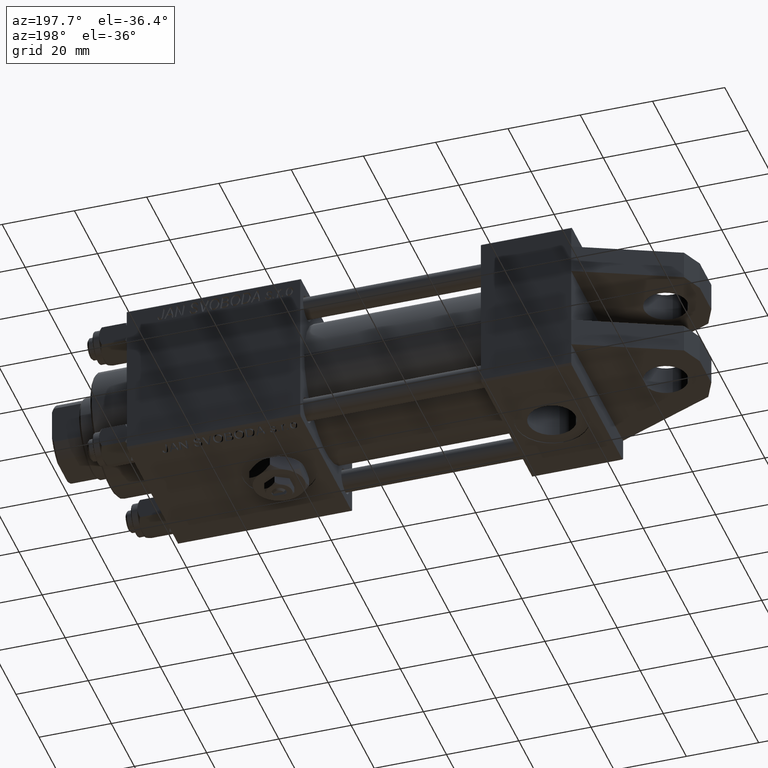
[diagram: clean part render]
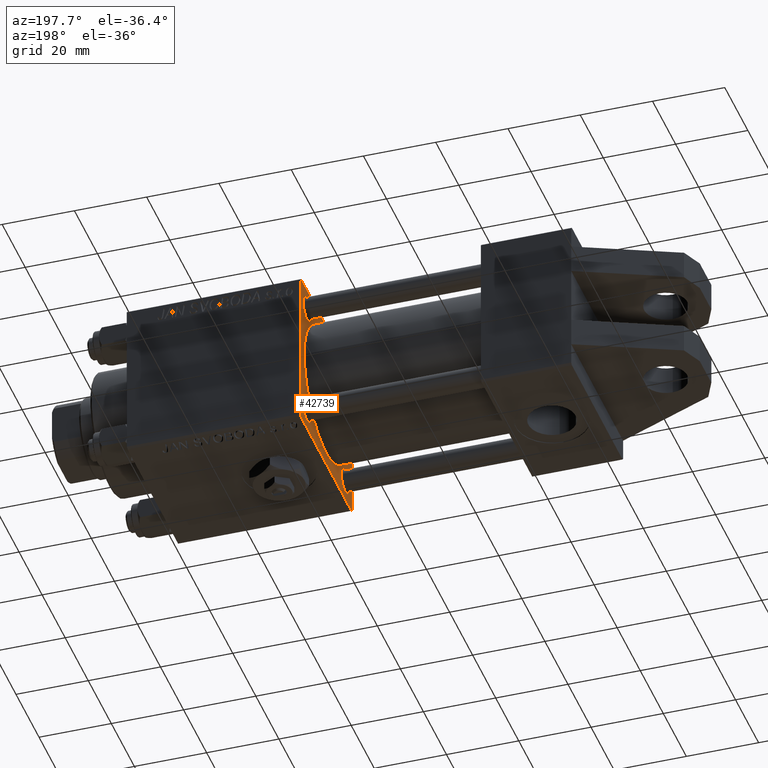
[diagram: same view with one face highlighted and labeled with its STEP entity id]
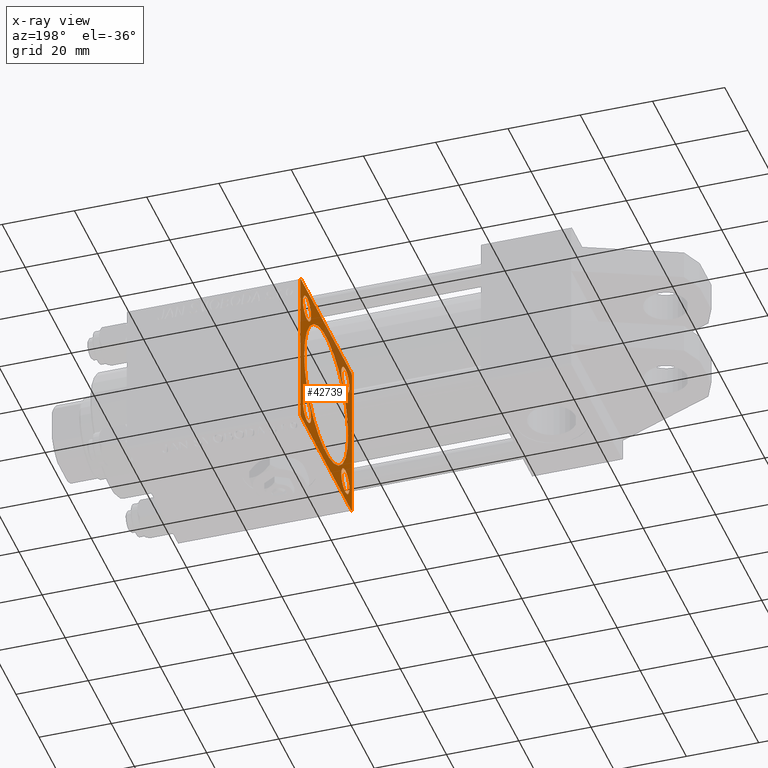
[diagram: x-ray of the same camera — body ghosted, the highlighted face saturated]
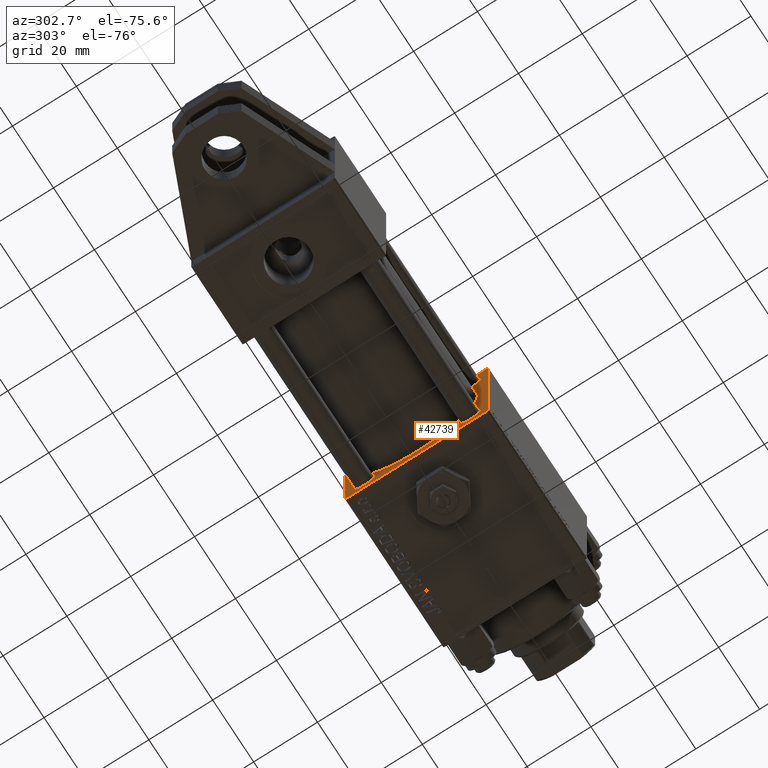
[diagram: same view with one face highlighted and labeled with its STEP entity id]
A machine part, auxiliary view. The second image highlights one B-rep face of the part: STEP entity #42739.
The next image is the same camera in x-ray: the body ghosted, the highlighted face saturated — about 29% of this face is hidden behind the body in this view.
A second angle (auxiliary view) of the same face is appended — the face is thin or edge-on in the first view.
In plain terms, the highlighted planar face has unit normal (-1, 0, -0).
Its self-contained STEP definition (entity closure, byte-faithful):
#305 = VECTOR ( 'NONE', #2714, 999.9999999999998863 ) ;
#902 = VERTEX_POINT ( 'NONE', #11072 ) ;
#1045 = EDGE_CURVE ( 'NONE', #2065, #22697, #37447, .T. ) ;
#1548 = ORIENTED_EDGE ( 'NONE', *, *, #25899, .T. ) ;
#1724 = EDGE_CURVE ( 'NONE', #14523, #5229, #34012, .T. ) ;
#1776 = AXIS2_PLACEMENT_3D ( 'NONE', #49094, #49355, #2058 ) ;
#1913 = CARTESIAN_POINT ( 'NONE',  ( 75.00000000000001421, -16.59999999999999787, 20.10000000000001208 ) ) ;
#2058 = DIRECTION ( 'NONE',  ( 0.000000000000000000, 0.000000000000000000, -1.000000000000000000 ) ) ;
#2065 = VERTEX_POINT ( 'NONE', #51357 ) ;
#2286 = ORIENTED_EDGE ( 'NONE', *, *, #14322, .F. ) ;
#2714 = DIRECTION ( 'NONE',  ( 0.000000000000000000, -0.7071067811865425767, 0.7071067811865525687 ) ) ;
#2893 = CARTESIAN_POINT ( 'NONE',  ( 75.00000000000001421, -21.99999999999998224, -22.50000000000000000 ) ) ;
#3347 = VERTEX_POINT ( 'NONE', #7104 ) ;
#3606 = EDGE_LOOP ( 'NONE', ( #34100, #44210 ) ) ;
#3982 = DIRECTION ( 'NONE',  ( 0.000000000000000000, 0.000000000000000000, 1.000000000000000000 ) ) ;
#4172 = CARTESIAN_POINT ( 'NONE',  ( 75.00000000000001421, 16.59999999999999787, -16.60000000000000497 ) ) ;
#4325 = LINE ( 'NONE', #22094, #42501 ) ;
#4722 = DIRECTION ( 'NONE',  ( 1.000000000000000000, 0.000000000000000000, 0.000000000000000000 ) ) ;
#5229 = VERTEX_POINT ( 'NONE', #32966 ) ;
#5438 = VERTEX_POINT ( 'NONE', #2893 ) ;
#5440 = CARTESIAN_POINT ( 'NONE',  ( 75.00000000000001421, 22.50000000000000355, 22.50000000000000355 ) ) ;
#5922 = CARTESIAN_POINT ( 'NONE',  ( 75.00000000000001421, -16.59999999999999787, 16.59999999999999787 ) ) ;
#6231 = FACE_BOUND ( 'NONE', #7945, .T. ) ;
#6274 = EDGE_LOOP ( 'NONE', ( #22276, #25473 ) ) ;
#6379 = LINE ( 'NONE', #22068, #305 ) ;
#6754 = AXIS2_PLACEMENT_3D ( 'NONE', #18334, #34272, #49933 ) ;
#6915 = ORIENTED_EDGE ( 'NONE', *, *, #1724, .T. ) ;
#7104 = CARTESIAN_POINT ( 'NONE',  ( 75.00000000000001421, -16.60000000000000497, -13.09999999999997300 ) ) ;
#7590 = AXIS2_PLACEMENT_3D ( 'NONE', #4172, #35304, #43632 ) ;
#7704 = CARTESIAN_POINT ( 'NONE',  ( 75.00000000000001421, 22.24999999999968026, 22.25000000000029488 ) ) ;
#7900 = DIRECTION ( 'NONE',  ( 0.000000000000000000, 0.000000000000000000, 1.000000000000000000 ) ) ;
#7945 = EDGE_LOOP ( 'NONE', ( #51056, #49007 ) ) ;
#8349 = ORIENTED_EDGE ( 'NONE', *, *, #38693, .T. ) ;
#8954 = EDGE_CURVE ( 'NONE', #17128, #26321, #44249, .T. ) ;
#9115 = CARTESIAN_POINT ( 'NONE',  ( 75.00000000000001421, 22.50000000000000355, -22.49999999999999645 ) ) ;
#9352 = LINE ( 'NONE', #5440, #37771 ) ;
#9622 = FACE_BOUND ( 'NONE', #6274, .T. ) ;
#9721 = VECTOR ( 'NONE', #21557, 1000.000000000000000 ) ;
#9781 = CARTESIAN_POINT ( 'NONE',  ( 75.00000000000001421, 22.24999999999969802, -22.25000000000031619 ) ) ;
#9895 = EDGE_CURVE ( 'NONE', #20922, #3347, #42628, .T. ) ;
#10833 = EDGE_CURVE ( 'NONE', #26321, #17128, #30141, .T. ) ;
#11019 = CARTESIAN_POINT ( 'NONE',  ( 75.00000000000001421, 22.00000000000000355, -22.49999999999999645 ) ) ;
#11072 = CARTESIAN_POINT ( 'NONE',  ( 75.00000000000001421, 21.99999999999996092, 22.50000000000000355 ) ) ;
#11725 = CIRCLE ( 'NONE', #45092, 3.500000000000016875 ) ;
#11732 = VERTEX_POINT ( 'NONE', #11019 ) ;
#11992 = EDGE_LOOP ( 'NONE', ( #17737, #28368 ) ) ;
#12415 = VECTOR ( 'NONE', #34276, 1000.000000000000000 ) ;
#12578 = CARTESIAN_POINT ( 'NONE',  ( 75.00000000000001421, -3.469446951953614189E-15, 0.000000000000000000 ) ) ;
#13207 = CARTESIAN_POINT ( 'NONE',  ( 75.00000000000001421, -3.469446951953614189E-15, 19.00000000000000000 ) ) ;
#13283 = ORIENTED_EDGE ( 'NONE', *, *, #47169, .T. ) ;
#13784 = DIRECTION ( 'NONE',  ( 0.000000000000000000, 0.000000000000000000, 1.000000000000000000 ) ) ;
#14322 = EDGE_CURVE ( 'NONE', #902, #24273, #9352, .T. ) ;
#14523 = VERTEX_POINT ( 'NONE', #23192 ) ;
#15301 = CIRCLE ( 'NONE', #39493, 19.00000000000000000 ) ;
#16131 = VERTEX_POINT ( 'NONE', #25070 ) ;
#16417 = ORIENTED_EDGE ( 'NONE', *, *, #1045, .T. ) ;
#17128 = VERTEX_POINT ( 'NONE', #22458 ) ;
#17734 = PLANE ( 'NONE',  #47992 ) ;
#17737 = ORIENTED_EDGE ( 'NONE', *, *, #38809, .T. ) ;
#17804 = VECTOR ( 'NONE', #50841, 1000.000000000000000 ) ;
#17997 = DIRECTION ( 'NONE',  ( -0.000000000000000000, 0.000000000000000000, 1.000000000000000000 ) ) ;
#18009 = EDGE_CURVE ( 'NONE', #23821, #29713, #33738, .T. ) ;
#18334 = CARTESIAN_POINT ( 'NONE',  ( 75.00000000000001421, -16.60000000000000497, -16.60000000000000497 ) ) ;
#19858 = EDGE_CURVE ( 'NONE', #48011, #28685, #4325, .T. ) ;
#20367 = AXIS2_PLACEMENT_3D ( 'NONE', #30567, #38393, #30304 ) ;
#20484 = LINE ( 'NONE', #31733, #25113 ) ;
#20922 = VERTEX_POINT ( 'NONE', #36615 ) ;
#21385 = DIRECTION ( 'NONE',  ( 0.000000000000000000, -1.000000000000000000, -2.312964634635742957E-16 ) ) ;
#21491 = EDGE_LOOP ( 'NONE', ( #1548, #8349, #26205, #48737, #2286, #32291, #6915, #49254 ) ) ;
#21557 = DIRECTION ( 'NONE',  ( -0.000000000000000000, -0.7071067811865573427, -0.7071067811865378028 ) ) ;
#22068 = CARTESIAN_POINT ( 'NONE',  ( 75.00000000000001421, -22.25000000000015277, -22.24999999999984013 ) ) ;
#22094 = CARTESIAN_POINT ( 'NONE',  ( 75.00000000000001421, -22.49999999999999645, 22.49999999999999289 ) ) ;
#22126 = DIRECTION ( 'NONE',  ( 0.000000000000000000, 0.000000000000000000, 1.000000000000000000 ) ) ;
#22276 = ORIENTED_EDGE ( 'NONE', *, *, #10833, .T. ) ;
#22458 = CARTESIAN_POINT ( 'NONE',  ( 75.00000000000001421, 16.59999999999999787, -20.10000000000003340 ) ) ;
#22470 = AXIS2_PLACEMENT_3D ( 'NONE', #43692, #28018, #7900 ) ;
#22697 = VERTEX_POINT ( 'NONE', #1913 ) ;
#23192 = CARTESIAN_POINT ( 'NONE',  ( 75.00000000000001421, 22.50000000000000355, 21.99999999999997513 ) ) ;
#23642 = CARTESIAN_POINT ( 'NONE',  ( 75.00000000000001421, -21.99999999999998224, 22.49999999999999289 ) ) ;
#23821 = VERTEX_POINT ( 'NONE', #29546 ) ;
#24273 = VERTEX_POINT ( 'NONE', #23642 ) ;
#24328 = DIRECTION ( 'NONE',  ( 0.000000000000000000, 0.000000000000000000, -1.000000000000000000 ) ) ;
#24804 = LINE ( 'NONE', #9115, #41742 ) ;
#25066 = DIRECTION ( 'NONE',  ( 0.000000000000000000, -1.000000000000000000, -7.709882115452476934E-17 ) ) ;
#25070 = CARTESIAN_POINT ( 'NONE',  ( 75.00000000000001421, -1.142618033573643218E-15, -19.00000000000000000 ) ) ;
#25113 = VECTOR ( 'NONE', #32503, 1000.000000000000000 ) ;
#25473 = ORIENTED_EDGE ( 'NONE', *, *, #8954, .T. ) ;
#25515 = CARTESIAN_POINT ( 'NONE',  ( 75.00000000000001421, 16.59999999999999787, 16.60000000000000497 ) ) ;
#25569 = FACE_OUTER_BOUND ( 'NONE', #21491, .T. ) ;
#25752 = CARTESIAN_POINT ( 'NONE',  ( 75.00000000000001421, -22.49999999999999645, -21.99999999999997868 ) ) ;
#25820 = FACE_BOUND ( 'NONE', #11992, .T. ) ;
#25899 = EDGE_CURVE ( 'NONE', #11732, #5438, #24804, .T. ) ;
#26205 = ORIENTED_EDGE ( 'NONE', *, *, #19858, .F. ) ;
#26321 = VERTEX_POINT ( 'NONE', #33106 ) ;
#26410 = EDGE_CURVE ( 'NONE', #29713, #23821, #11725, .T. ) ;
#27312 = AXIS2_PLACEMENT_3D ( 'NONE', #5922, #49811, #13784 ) ;
#27757 = EDGE_CURVE ( 'NONE', #48011, #24273, #20484, .T. ) ;
#28018 = DIRECTION ( 'NONE',  ( 1.000000000000000000, -0.000000000000000000, 0.000000000000000000 ) ) ;
#28146 = CIRCLE ( 'NONE', #27312, 3.500000000000016875 ) ;
#28368 = ORIENTED_EDGE ( 'NONE', *, *, #9895, .T. ) ;
#28685 = VERTEX_POINT ( 'NONE', #25752 ) ;
#28814 = EDGE_CURVE ( 'NONE', #49464, #16131, #42678, .T. ) ;
#29546 = CARTESIAN_POINT ( 'NONE',  ( 75.00000000000001421, 16.59999999999999787, 13.09999999999998721 ) ) ;
#29713 = VERTEX_POINT ( 'NONE', #38006 ) ;
#30141 = CIRCLE ( 'NONE', #7590, 3.500000000000031086 ) ;
#30178 = LINE ( 'NONE', #9781, #9721 ) ;
#30304 = DIRECTION ( 'NONE',  ( 0.000000000000000000, 0.000000000000000000, 1.000000000000000000 ) ) ;
#30432 = CARTESIAN_POINT ( 'NONE',  ( 75.00000000000001421, -16.60000000000000497, -16.60000000000000497 ) ) ;
#30567 = CARTESIAN_POINT ( 'NONE',  ( 75.00000000000001421, 16.59999999999999787, 16.60000000000000497 ) ) ;
#31459 = EDGE_LOOP ( 'NONE', ( #13283, #16417 ) ) ;
#31733 = CARTESIAN_POINT ( 'NONE',  ( 75.00000000000001421, -22.24999999999969447, 22.25000000000030909 ) ) ;
#31770 = AXIS2_PLACEMENT_3D ( 'NONE', #38562, #39072, #49332 ) ;
#31772 = CARTESIAN_POINT ( 'NONE',  ( 75.00000000000001421, -22.49999999999999645, 22.00000000000000711 ) ) ;
#32291 = ORIENTED_EDGE ( 'NONE', *, *, #36314, .T. ) ;
#32503 = DIRECTION ( 'NONE',  ( -0.000000000000000000, 0.7071067811865573427, 0.7071067811865378028 ) ) ;
#32966 = CARTESIAN_POINT ( 'NONE',  ( 75.00000000000001421, 22.50000000000000355, -21.99999999999999645 ) ) ;
#33106 = CARTESIAN_POINT ( 'NONE',  ( 75.00000000000001421, 16.59999999999999787, -13.09999999999997300 ) ) ;
#33409 = FACE_BOUND ( 'NONE', #31459, .T. ) ;
#33738 = CIRCLE ( 'NONE', #20367, 3.500000000000016875 ) ;
#34012 = LINE ( 'NONE', #34790, #12415 ) ;
#34100 = ORIENTED_EDGE ( 'NONE', *, *, #26410, .T. ) ;
#34272 = DIRECTION ( 'NONE',  ( 1.000000000000000000, -0.000000000000000000, 0.000000000000000000 ) ) ;
#34276 = DIRECTION ( 'NONE',  ( 0.000000000000000000, 0.000000000000000000, -1.000000000000000000 ) ) ;
#34790 = CARTESIAN_POINT ( 'NONE',  ( 75.00000000000001421, 22.50000000000000355, 22.50000000000000355 ) ) ;
#35304 = DIRECTION ( 'NONE',  ( 1.000000000000000000, -0.000000000000000000, 0.000000000000000000 ) ) ;
#36218 = CIRCLE ( 'NONE', #40399, 3.500000000000031086 ) ;
#36314 = EDGE_CURVE ( 'NONE', #902, #14523, #43491, .T. ) ;
#36615 = CARTESIAN_POINT ( 'NONE',  ( 75.00000000000001421, -16.60000000000000497, -20.10000000000003340 ) ) ;
#37447 = CIRCLE ( 'NONE', #22470, 3.500000000000016875 ) ;
#37771 = VECTOR ( 'NONE', #21385, 1000.000000000000000 ) ;
#38006 = CARTESIAN_POINT ( 'NONE',  ( 75.00000000000001421, 16.59999999999999787, 20.10000000000001918 ) ) ;
#38393 = DIRECTION ( 'NONE',  ( 1.000000000000000000, -0.000000000000000000, 0.000000000000000000 ) ) ;
#38562 = CARTESIAN_POINT ( 'NONE',  ( 75.00000000000001421, 16.59999999999999787, -16.60000000000000497 ) ) ;
#38693 = EDGE_CURVE ( 'NONE', #5438, #28685, #6379, .T. ) ;
#38809 = EDGE_CURVE ( 'NONE', #3347, #20922, #36218, .T. ) ;
#39072 = DIRECTION ( 'NONE',  ( 1.000000000000000000, -0.000000000000000000, 0.000000000000000000 ) ) ;
#39493 = AXIS2_PLACEMENT_3D ( 'NONE', #12578, #4722, #24328 ) ;
#40399 = AXIS2_PLACEMENT_3D ( 'NONE', #30432, #44209, #3982 ) ;
#41742 = VECTOR ( 'NONE', #25066, 1000.000000000000000 ) ;
#41755 = DIRECTION ( 'NONE',  ( -1.000000000000000000, 0.000000000000000000, -0.000000000000000000 ) ) ;
#42501 = VECTOR ( 'NONE', #50035, 1000.000000000000000 ) ;
#42628 = CIRCLE ( 'NONE', #6754, 3.500000000000031086 ) ;
#42678 = CIRCLE ( 'NONE', #1776, 19.00000000000000000 ) ;
#42739 = ADVANCED_FACE ( 'NONE', ( #33409, #49329, #9622, #25820, #6231, #25569 ), #17734, .T. ) ;
#43491 = LINE ( 'NONE', #7704, #17804 ) ;
#43632 = DIRECTION ( 'NONE',  ( 0.000000000000000000, 0.000000000000000000, 1.000000000000000000 ) ) ;
#43692 = CARTESIAN_POINT ( 'NONE',  ( 75.00000000000001421, -16.59999999999999787, 16.59999999999999787 ) ) ;
#44209 = DIRECTION ( 'NONE',  ( 1.000000000000000000, -0.000000000000000000, 0.000000000000000000 ) ) ;
#44210 = ORIENTED_EDGE ( 'NONE', *, *, #18009, .T. ) ;
#44249 = CIRCLE ( 'NONE', #31770, 3.500000000000031086 ) ;
#45092 = AXIS2_PLACEMENT_3D ( 'NONE', #25515, #49800, #22126 ) ;
#45323 = EDGE_CURVE ( 'NONE', #5229, #11732, #30178, .T. ) ;
#47169 = EDGE_CURVE ( 'NONE', #22697, #2065, #28146, .T. ) ;
#47992 = AXIS2_PLACEMENT_3D ( 'NONE', #49599, #41755, #17997 ) ;
#48011 = VERTEX_POINT ( 'NONE', #31772 ) ;
#48737 = ORIENTED_EDGE ( 'NONE', *, *, #27757, .T. ) ;
#49007 = ORIENTED_EDGE ( 'NONE', *, *, #50877, .T. ) ;
#49094 = CARTESIAN_POINT ( 'NONE',  ( 75.00000000000001421, -3.469446951953614189E-15, 0.000000000000000000 ) ) ;
#49254 = ORIENTED_EDGE ( 'NONE', *, *, #45323, .T. ) ;
#49329 = FACE_BOUND ( 'NONE', #3606, .T. ) ;
#49332 = DIRECTION ( 'NONE',  ( 0.000000000000000000, 0.000000000000000000, 1.000000000000000000 ) ) ;
#49355 = DIRECTION ( 'NONE',  ( 1.000000000000000000, 0.000000000000000000, 0.000000000000000000 ) ) ;
#49464 = VERTEX_POINT ( 'NONE', #13207 ) ;
#49599 = CARTESIAN_POINT ( 'NONE',  ( 75.00000000000001421, 0.000000000000000000, 0.000000000000000000 ) ) ;
#49800 = DIRECTION ( 'NONE',  ( 1.000000000000000000, -0.000000000000000000, 0.000000000000000000 ) ) ;
#49811 = DIRECTION ( 'NONE',  ( 1.000000000000000000, -0.000000000000000000, 0.000000000000000000 ) ) ;
#49933 = DIRECTION ( 'NONE',  ( 0.000000000000000000, 0.000000000000000000, 1.000000000000000000 ) ) ;
#50035 = DIRECTION ( 'NONE',  ( 0.000000000000000000, 0.000000000000000000, -1.000000000000000000 ) ) ;
#50841 = DIRECTION ( 'NONE',  ( 0.000000000000000000, 0.7071067811865573427, -0.7071067811865378028 ) ) ;
#50877 = EDGE_CURVE ( 'NONE', #16131, #49464, #15301, .T. ) ;
#51056 = ORIENTED_EDGE ( 'NONE', *, *, #28814, .T. ) ;
#51357 = CARTESIAN_POINT ( 'NONE',  ( 75.00000000000001421, -16.59999999999999787, 13.09999999999998010 ) ) ;